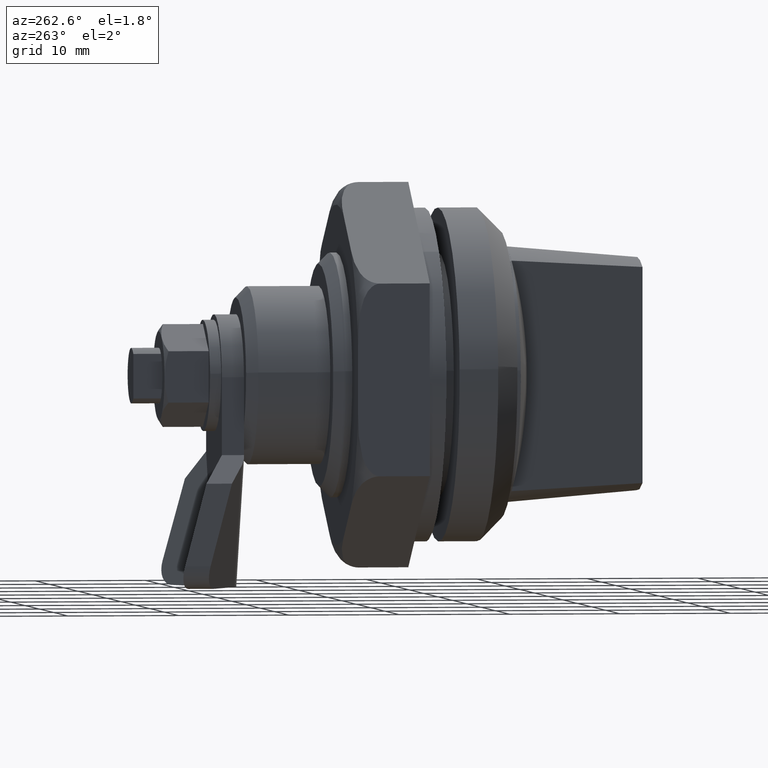
[diagram: clean part render]
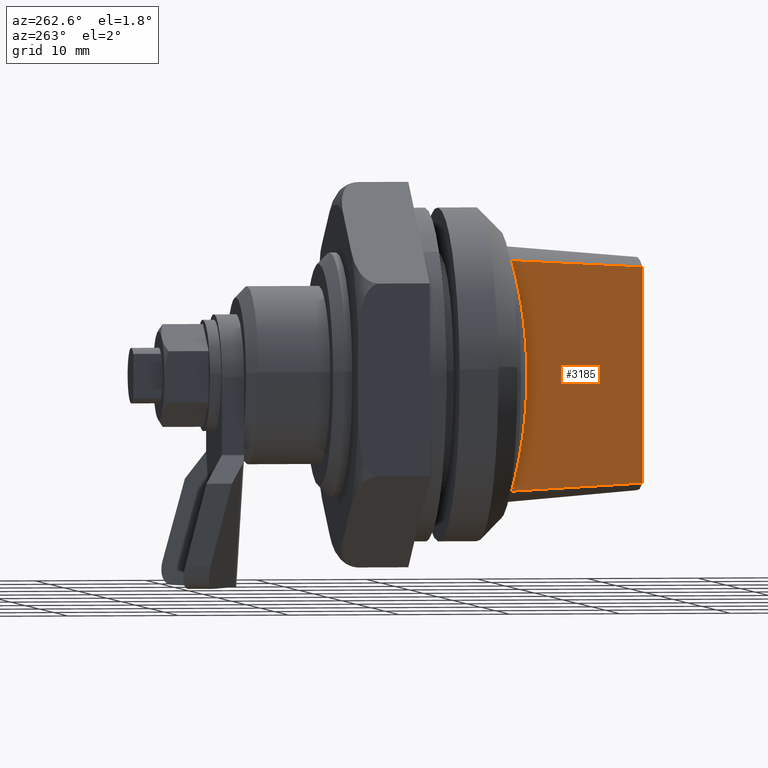
[diagram: same view with one face highlighted and labeled with its STEP entity id]
A machine part, auxiliary view. The second image highlights one B-rep face of the part: STEP entity #3185.
In plain terms, the highlighted face is a freeform B-spline surface patch.
Its self-contained STEP definition (entity closure, byte-faithful):
#3011=CARTESIAN_POINT('',(-4.0,-18.0,-9.708243919474022));
#3012=VERTEX_POINT('',#3011);
#3013=CARTESIAN_POINT('',(-4.0,-18.0,9.708243919474000));
#3014=VERTEX_POINT('',#3013);
#3015=CARTESIAN_POINT('',(-4.0,-18.0,-9.708243919474022));
#3016=CARTESIAN_POINT('',(-4.0,-18.0,9.708243919474000));
#3017=QUASI_UNIFORM_CURVE('',1,(#3015,#3016),.UNSPECIFIED.,.F.,.U.);
#3018=EDGE_CURVE('',#3012,#3014,#3017,.T.);
#3080=CARTESIAN_POINT('',(-4.999991294062110,-6.000104471253770,-10.356152124356420));
#3081=VERTEX_POINT('',#3080);
#3103=CARTESIAN_POINT('',(-4.999991294062114,-6.000104471253771,-10.356152124356431));
#3104=CARTESIAN_POINT('',(-4.666630759682700,-10.000430883807081,-10.146919636512790));
#3105=CARTESIAN_POINT('',(-4.333298325307241,-14.000420096312920,-9.931398501545386));
#3106=CARTESIAN_POINT('',(-4.000000000000012,-18.0,-9.708243919474025));
#3107=QUASI_UNIFORM_CURVE('',3,(#3103,#3104,#3105,#3106),.UNSPECIFIED.,.F.,.U.);
#3108=EDGE_CURVE('',#3081,#3012,#3107,.T.);
#3127=CARTESIAN_POINT('',(-4.999991294062080,-6.000104471254120,10.356152124355200));
#3128=VERTEX_POINT('',#3127);
#3144=CARTESIAN_POINT('',(-4.000000000000012,-18.0,9.708243919474022));
#3145=CARTESIAN_POINT('',(-4.333298325307229,-14.000420096313061,9.931398501545374));
#3146=CARTESIAN_POINT('',(-4.666630759682676,-10.000430883807359,10.146919636512770));
#3147=CARTESIAN_POINT('',(-4.999991294062079,-6.000104471254185,10.356152124356401));
#3148=QUASI_UNIFORM_CURVE('',3,(#3144,#3145,#3146,#3147),.UNSPECIFIED.,.F.,.U.);
#3149=EDGE_CURVE('',#3014,#3128,#3148,.T.);
#3162=CARTESIAN_POINT('',(-5.049940857262339,-5.400709712851022,-11.390731681435099));
#3163=CARTESIAN_POINT('',(-3.950050409977930,-18.599395080265030,-11.390731681435099));
#3164=CARTESIAN_POINT('',(-5.049940857262339,-5.400709712851022,11.390732236981171));
#3165=CARTESIAN_POINT('',(-3.950050409977930,-18.599395080265030,11.390732236981171));
#3166=B_SPLINE_SURFACE_WITH_KNOTS('',1,1,((#3162,#3164),(#3163,#3165)),.UNSPECIFIED.,.F.,.F.,.U.,(2,2),(2,2),(0.0,13.244434847286470),(0.0,22.781463918416271),.UNSPECIFIED.);
#3167=ORIENTED_EDGE('',*,*,#3149,.T.);
#3168=CARTESIAN_POINT('',(-4.999991294062079,-6.000104471254105,10.356152124355210));
#3169=CARTESIAN_POINT('',(-4.762484347088271,-8.850187834940043,-6.538321E-013));
#3170=CARTESIAN_POINT('',(-4.999991294062107,-6.000104471253771,-10.356152124356420));
#3178=(BOUNDED_CURVE()B_SPLINE_CURVE(2,(#3168,#3169,#3170),.UNSPECIFIED.,.F.,.U.)CURVE()GEOMETRIC_REPRESENTATION_ITEM()QUASI_UNIFORM_CURVE()RATIONAL_B_SPLINE_CURVE((1.0,0.963918784689477,1.0))REPRESENTATION_ITEM(''));
#3179=EDGE_CURVE('',#3128,#3081,#3178,.T.);
#3180=ORIENTED_EDGE('',*,*,#3179,.T.);
#3181=ORIENTED_EDGE('',*,*,#3108,.T.);
#3182=ORIENTED_EDGE('',*,*,#3018,.T.);
#3183=EDGE_LOOP('',(#3167,#3180,#3181,#3182));
#3184=FACE_OUTER_BOUND('',#3183,.T.);
#3185=ADVANCED_FACE('',(#3184),#3166,.T.);